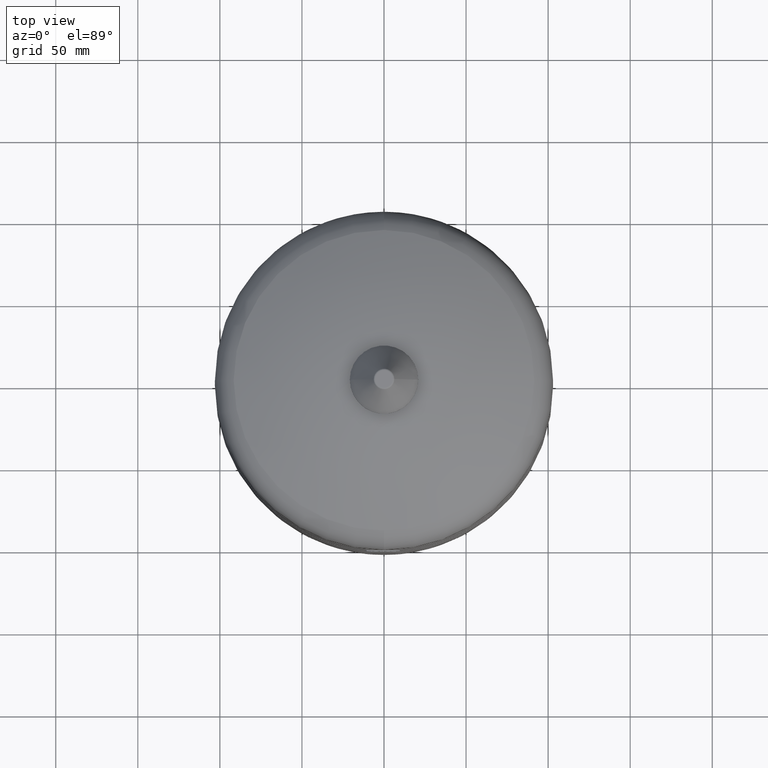
[diagram: clean part render]
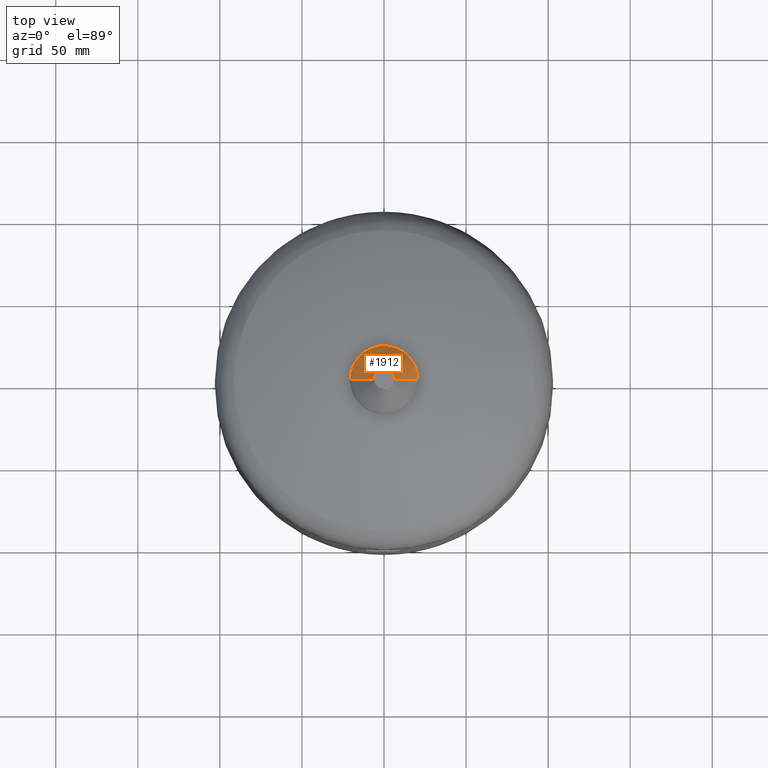
[diagram: same view with one face highlighted and labeled with its STEP entity id]
A machine part, top view. The second image highlights one B-rep face of the part: STEP entity #1912.
In plain terms, the highlighted conical surface has half-angle 30.964 deg.
Its self-contained STEP definition (entity closure, byte-faithful):
#1768=CARTESIAN_POINT('',(-20.614128183429354,0.0,312.643119694284390));
#1769=VERTEX_POINT('',#1768);
#1786=CARTESIAN_POINT('',(20.614128183429351,-2.524419E-015,312.643119694284390));
#1787=VERTEX_POINT('',#1786);
#1810=CARTESIAN_POINT('',(-6.364128183429356,0.0,336.393119694284390));
#1811=VERTEX_POINT('',#1810);
#1812=CARTESIAN_POINT('',(-20.614128183429354,0.0,312.643119694284390));
#1813=DIRECTION('',(0.514495755427526,0.0,0.857492925712544));
#1814=VECTOR('',#1813,27.697021500515177);
#1815=LINE('',#1812,#1814);
#1816=EDGE_CURVE('',#1769,#1811,#1815,.T.);
#1819=CARTESIAN_POINT('',(6.364128183429356,-7.793552E-016,336.393119694284390));
#1820=VERTEX_POINT('',#1819);
#1821=CARTESIAN_POINT('',(20.614128183429351,-2.524419E-015,312.643119694284390));
#1822=DIRECTION('',(-0.514495755427526,6.300548E-017,0.857492925712544));
#1823=VECTOR('',#1822,27.697021500515174);
#1824=LINE('',#1821,#1823);
#1825=EDGE_CURVE('',#1787,#1820,#1824,.T.);
#1885=CARTESIAN_POINT('',(-1.773085E-016,0.0,336.393119694284390));
#1886=DIRECTION('',(0.0,0.0,-1.0));
#1887=DIRECTION('',(-1.0,0.0,0.0));
#1888=AXIS2_PLACEMENT_3D('',#1885,#1886,#1887);
#1889=CIRCLE('',#1888,6.364128183429356);
#1890=EDGE_CURVE('',#1811,#1820,#1889,.T.);
#1895=CARTESIAN_POINT('',(-3.646756E-015,0.0,324.518119694284390));
#1896=DIRECTION('',(-2.921640E-016,0.0,-1.0));
#1897=DIRECTION('',(-1.0,0.0,0.0));
#1898=AXIS2_PLACEMENT_3D('',#1895,#1896,#1897);
#1899=CONICAL_SURFACE('',#1898,13.489128183429353,30.963756532073528);
#1900=ORIENTED_EDGE('',*,*,#1816,.T.);
#1901=ORIENTED_EDGE('',*,*,#1890,.T.);
#1902=ORIENTED_EDGE('',*,*,#1825,.F.);
#1903=CARTESIAN_POINT('',(-7.116202E-015,0.0,312.643119694284390));
#1904=DIRECTION('',(0.0,0.0,-1.0));
#1905=DIRECTION('',(-1.0,0.0,0.0));
#1906=AXIS2_PLACEMENT_3D('',#1903,#1904,#1905);
#1907=CIRCLE('',#1906,20.614128183429351);
#1908=EDGE_CURVE('',#1769,#1787,#1907,.T.);
#1909=ORIENTED_EDGE('',*,*,#1908,.F.);
#1910=EDGE_LOOP('',(#1900,#1901,#1902,#1909));
#1911=FACE_OUTER_BOUND('',#1910,.T.);
#1912=ADVANCED_FACE('',(#1911),#1899,.T.);